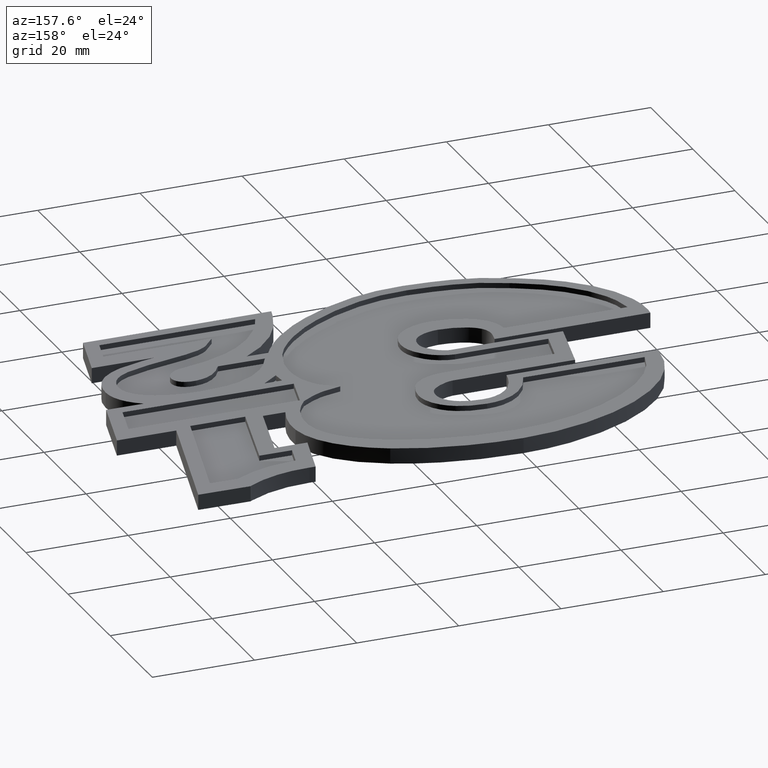
[diagram: clean part render]
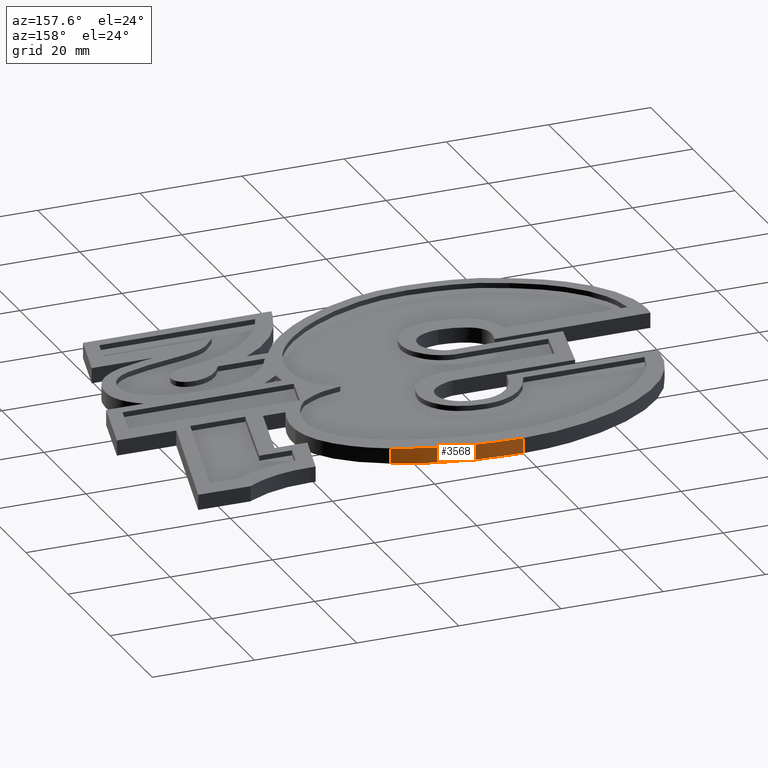
[diagram: same view with one face highlighted and labeled with its STEP entity id]
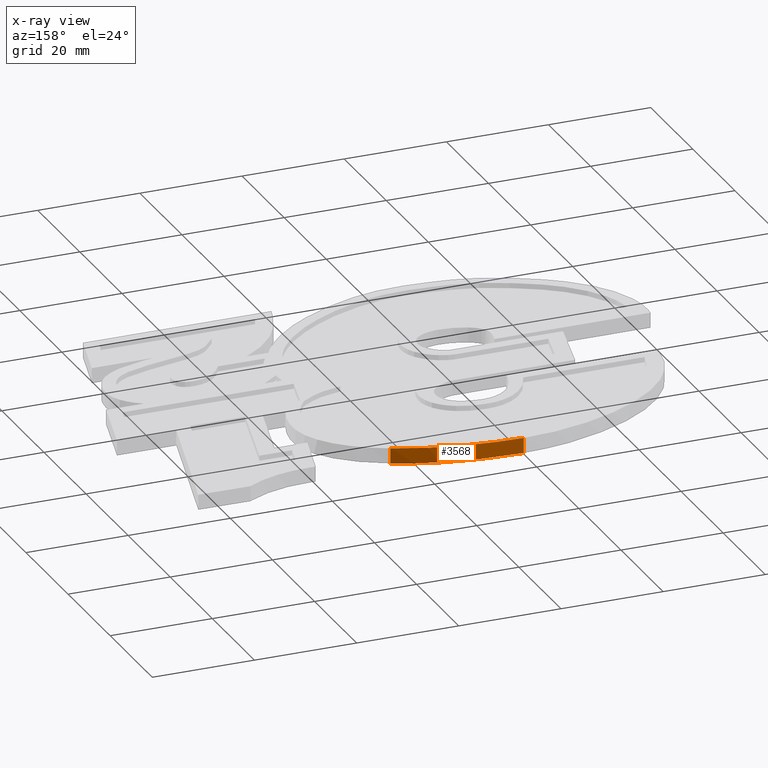
[diagram: x-ray of the same camera — body ghosted, the highlighted face saturated]
A machine part, auxiliary view. The second image highlights one B-rep face of the part: STEP entity #3568.
The next image is the same camera in x-ray: the body ghosted, the highlighted face saturated — about 0% of this face is hidden behind the body in this view.
In plain terms, the highlighted face is a freeform B-spline surface patch.
Its self-contained STEP definition (entity closure, byte-faithful):
#390 = ORIENTED_EDGE ( 'NONE', *, *, #3486, .T. ) ;
#403 = VERTEX_POINT ( 'NONE', #1212 ) ;
#439 = VERTEX_POINT ( 'NONE', #1216 ) ;
#842 = VERTEX_POINT ( 'NONE', #1925 ) ;
#1024 = EDGE_LOOP ( 'NONE', ( #390, #5680, #5518, #5519 ) ) ;
#1212 = CARTESIAN_POINT ( 'NONE',  ( 105.6631455899037100, 172.6425197593567000, -2.000000000000000000 ) ) ;
#1216 = CARTESIAN_POINT ( 'NONE',  ( 105.6631455899037100, 172.6425197593567000, 1.000000000000000000 ) ) ;
#1925 = CARTESIAN_POINT ( 'NONE',  ( 81.58468422439550200, 177.5450628896415400, 1.000000000000000000 ) ) ;
#2010 = B_SPLINE_SURFACE_WITH_KNOTS ( 'NONE', 3, 1, ( 
 ( #4930, #4922 ),
 ( #4932, #4933 ),
 ( #4934, #4935 ),
 ( #4936, #4937 ) ),
 .UNSPECIFIED., .F., .F., .F.,
 ( 4, 4 ),
 ( 2, 2 ),
 ( 18.00000000000000000, 19.00000000000000000 ),
 ( 0.0000000000000000000, 1.000000000000000000 ),
 .UNSPECIFIED. ) ;
#2830 = VECTOR ( 'NONE', #4457, 1000.000000000000000 ) ;
#2832 = VECTOR ( 'NONE', #4466, 1000.000000000000000 ) ;
#3484 = EDGE_CURVE ( 'NONE', #439, #842, #4256, .T. ) ;
#3486 = EDGE_CURVE ( 'NONE', #439, #403, #4454, .T. ) ;
#3488 = EDGE_CURVE ( 'NONE', #842, #5685, #4463, .T. ) ;
#3504 = EDGE_CURVE ( 'NONE', #5685, #403, #4263, .T. ) ;
#3568 = ADVANCED_FACE ( 'NONE', ( #4920 ), #2010, .F. ) ;
#3990 = CARTESIAN_POINT ( 'NONE',  ( 81.58468422439550200, 177.5450628896415400, -2.000000000000000000 ) ) ;
#4256 = B_SPLINE_CURVE_WITH_KNOTS ( 'NONE', 3,
 ( #4439, #4438, #4449, #4450 ),
 .UNSPECIFIED., .F., .F.,
 ( 4, 4 ),
 ( 18.00000000000000000, 19.00000000000000000 ),
 .UNSPECIFIED. ) ;
#4263 = B_SPLINE_CURVE_WITH_KNOTS ( 'NONE', 3,
 ( #4532, #4531, #4544, #4545, #4546, #4547, #4548, #4549, #4550, #4551, #4552, #4553 ),
 .UNSPECIFIED., .F., .F.,
 ( 4, 2, 2, 2, 2, 4 ),
 ( 0.0000000000000000000, 0.006192866540567928100, 0.01238573308113585600, 0.01548216635141981900, 0.01857859962170378700, 0.02477146616227175100 ),
 .UNSPECIFIED. ) ;
#4438 = CARTESIAN_POINT ( 'NONE',  ( 98.97104760980585100, 175.7580918614424100, 1.000000000000000000 ) ) ;
#4439 = CARTESIAN_POINT ( 'NONE',  ( 105.6631455899037100, 172.6425197593567000, 1.000000000000000000 ) ) ;
#4449 = CARTESIAN_POINT ( 'NONE',  ( 90.19483911590614900, 177.5450628896415400, 1.000000000000000000 ) ) ;
#4450 = CARTESIAN_POINT ( 'NONE',  ( 81.58468422439550200, 177.5450628896415400, 1.000000000000000000 ) ) ;
#4454 = LINE ( 'NONE', #4456, #2830 ) ;
#4456 = CARTESIAN_POINT ( 'NONE',  ( 105.6631455899037100, 172.6425197593567000, 1.000000000000000000 ) ) ;
#4457 = DIRECTION ( 'NONE',  ( -0.0000000000000000000, -0.0000000000000000000, -1.000000000000000000 ) ) ;
#4463 = LINE ( 'NONE', #4465, #2832 ) ;
#4465 = CARTESIAN_POINT ( 'NONE',  ( 81.58468422439550200, 177.5450628896415400, 1.000000000000000000 ) ) ;
#4466 = DIRECTION ( 'NONE',  ( -0.0000000000000000000, -0.0000000000000000000, -1.000000000000000000 ) ) ;
#4531 = CARTESIAN_POINT ( 'NONE',  ( 83.65185543560095000, 177.5450628896415400, -1.999999999999999600 ) ) ;
#4532 = CARTESIAN_POINT ( 'NONE',  ( 81.58468422439550200, 177.5450628896415400, -2.000000000000000000 ) ) ;
#4544 = CARTESIAN_POINT ( 'NONE',  ( 85.71363544974957400, 177.4430794972341500, -1.999999999999999600 ) ) ;
#4545 = CARTESIAN_POINT ( 'NONE',  ( 89.82689901509678500, 177.0443381177668700, -2.000000000000000000 ) ) ;
#4546 = CARTESIAN_POINT ( 'NONE',  ( 91.87153465585525700, 176.7481607904517500, -2.000000000000000000 ) ) ;
#4547 = CARTESIAN_POINT ( 'NONE',  ( 94.91211010322641100, 176.1523456837578600, -2.000000000000000000 ) ) ;
#4548 = CARTESIAN_POINT ( 'NONE',  ( 95.92170464460986100, 175.9281317847738300, -1.999999999999999600 ) ) ;
#4549 = CARTESIAN_POINT ( 'NONE',  ( 97.92114329972088200, 175.4279197202435500, -2.000000000000000400 ) ) ;
#4550 = CARTESIAN_POINT ( 'NONE',  ( 98.91235095762979800, 175.1517030953290300, -2.000000000000000400 ) ) ;
#4551 = CARTESIAN_POINT ( 'NONE',  ( 101.8580850932127100, 174.2375007822885200, -2.000000000000000900 ) ) ;
#4552 = CARTESIAN_POINT ( 'NONE',  ( 103.7855931543984100, 173.5166327812611700, -2.000000000000000900 ) ) ;
#4553 = CARTESIAN_POINT ( 'NONE',  ( 105.6631455899037100, 172.6425197593567000, -2.000000000000000000 ) ) ;
#4920 = FACE_OUTER_BOUND ( 'NONE', #1024, .T. ) ;
#4922 = CARTESIAN_POINT ( 'NONE',  ( 105.6631455899037100, 172.6425197593567000, -2.000000000000000000 ) ) ;
#4930 = CARTESIAN_POINT ( 'NONE',  ( 105.6631455899037100, 172.6425197593567000, 1.000000000000000000 ) ) ;
#4932 = CARTESIAN_POINT ( 'NONE',  ( 98.97104760980585100, 175.7580918614424100, 1.000000000000000000 ) ) ;
#4933 = CARTESIAN_POINT ( 'NONE',  ( 98.97104760980585100, 175.7580918614424100, -2.000000000000000000 ) ) ;
#4934 = CARTESIAN_POINT ( 'NONE',  ( 90.19483911590614900, 177.5450628896415400, 1.000000000000000000 ) ) ;
#4935 = CARTESIAN_POINT ( 'NONE',  ( 90.19483911590614900, 177.5450628896415400, -2.000000000000000000 ) ) ;
#4936 = CARTESIAN_POINT ( 'NONE',  ( 81.58468422439550200, 177.5450628896415400, 1.000000000000000000 ) ) ;
#4937 = CARTESIAN_POINT ( 'NONE',  ( 81.58468422439550200, 177.5450628896415400, -2.000000000000000000 ) ) ;
#5518 = ORIENTED_EDGE ( 'NONE', *, *, #3488, .F. ) ;
#5519 = ORIENTED_EDGE ( 'NONE', *, *, #3484, .F. ) ;
#5680 = ORIENTED_EDGE ( 'NONE', *, *, #3504, .F. ) ;
#5685 = VERTEX_POINT ( 'NONE', #3990 ) ;